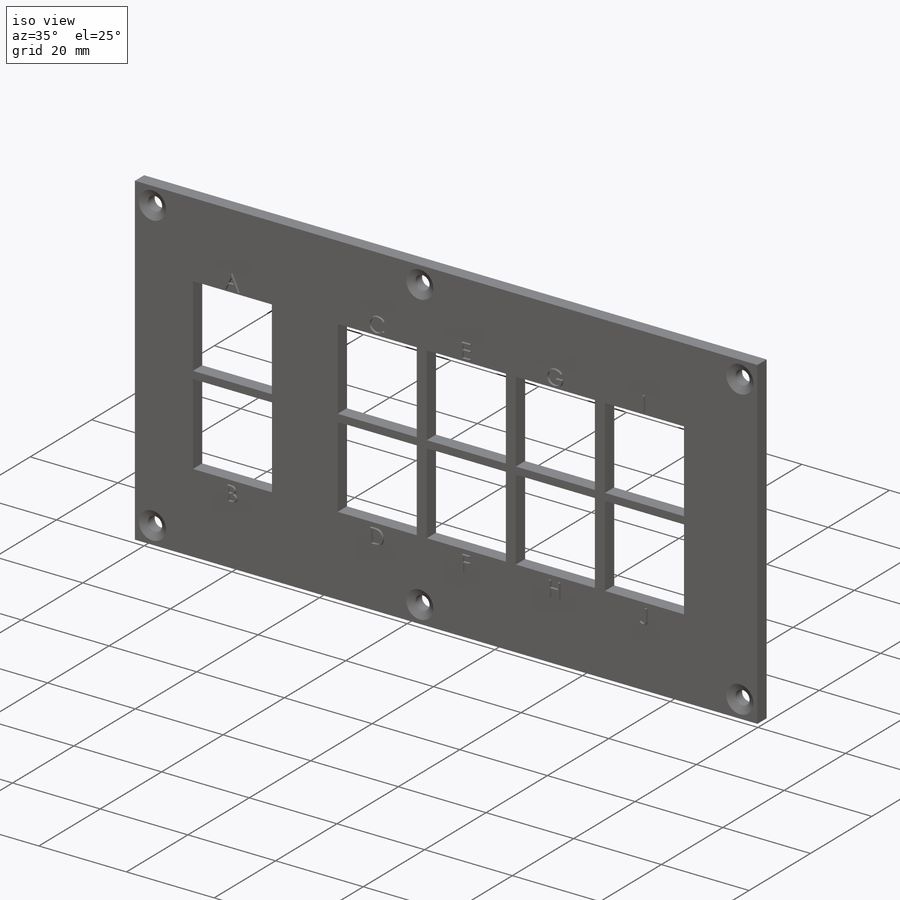
[diagram: iso view]
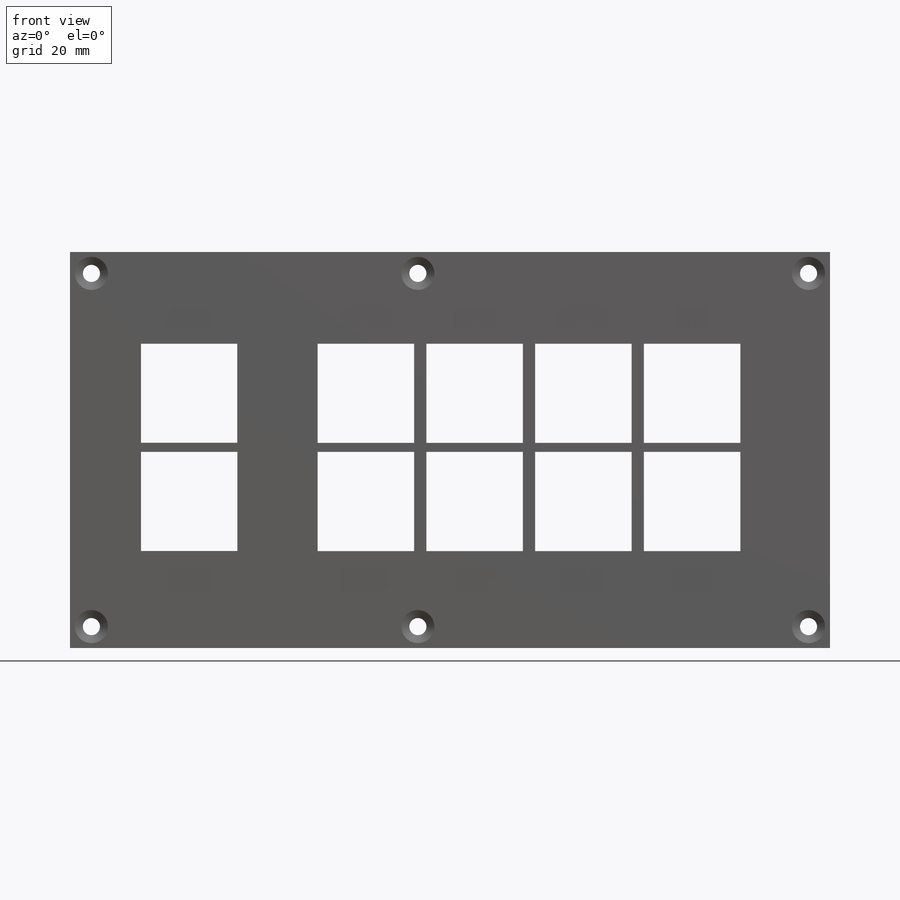
[diagram: front view]
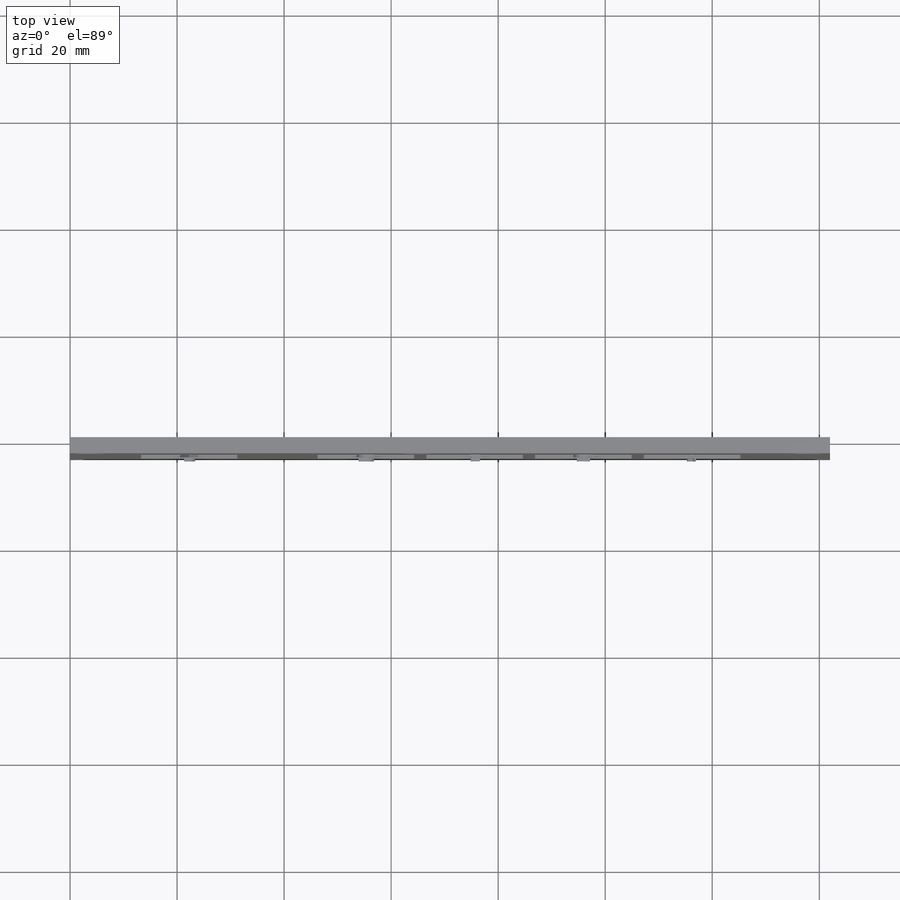
[diagram: top view]
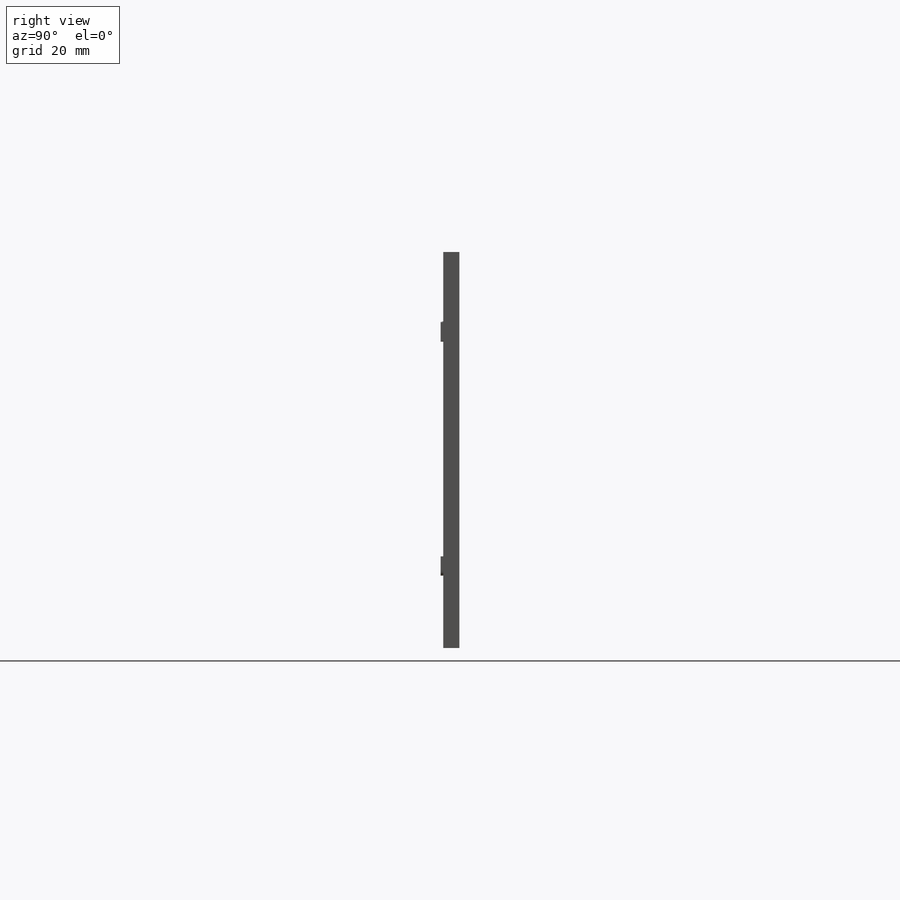
[diagram: right view]
SOLIDWORKS PART (.sldprt)
format: sldprt  version: not decoded by parser v0  size: 531,456 bytes
history: native  units: mm
features: sketch x4, plane x3, extrude x2, cut_extrude x2, material x1, chamfer x1 (+10 scaffold rows collapsed)
feature tree (23):
  scaffold x10  (default folders/planes/origin — collapsed)
  material  "Matériau <non spécifié>"
  plane  "Plan de face"
  plane  "Plan de dessus"
  plane  "Plan de droite"
  sketch  "Esquisse1"  dims[D1=142.0mm D2=74.0mm]
  extrude  "Boss.-Extru.1"  Depth=3mm
  sketch  "Esquisse2"  dims[c1.D1=3.2mm c1.D4=3.2mm c1.D13=3.2mm c1.D14=3.2mm c1.D15=3.2mm c1.D18=3.2mm c1.D2=4.0mm c1.D3=4.0mm c1.D5=4.0mm c1.D6=65.0mm c1.D7=4.0mm c1.D8=4.0mm c1.D9=16.0mm c1.D10=4.0mm c1.D11=4.0mm c1.D12=65.0mm c1.D16=4.0mm c1.D17=4.0mm c2.D9=4.0mm]
  cut_extrude  "Enlèv. mat.-Extru.1"  Depth=3mm
  chamfer  "Chanfrein1"  Distance=1.5mm Angle=30deg
  sketch  "Esquisse3"  dims[c1.D1=0.5mm c1.D2=0.5mm c1.D3=0.5mm c1.D4=0.5mm c2.D1=18.0mm c2.D2=18.5mm c2.D3=13.25mm c2.D4=17.15mm c2.D5=0.5mm c2.D6=0.5mm c2.D7=0.5mm c2.D8=0.5mm c3.D5=1.693mm c3.D6=18.53mm c3.D7=18.018mm c3.D8=13.25mm c3.D9=0.5mm c3.D10=0.5mm c3.D11=0.5mm c3.D12=0.5mm c4.D9=18.02mm c4.D10=18.526mm c4.D11=15.018mm c4.D12=17.15mm c4.D13=4.0 c4.D14=2.0]
  cut_extrude  "Enlèv. mat.-Extru.2"  Depth=3mm
  sketch  "Esquisse4"  dims[D1=0.5mm D2=0.5mm D3=0.5mm D4=4.5mm D5=0.0mm D6=0.0mm D7=0.0mm D8=0.0mm D9=0.0mm D10=0.0mm D11=0.0mm D12=0.0mm D13=0.0mm D14=0.0mm D15=0.0mm D16=0.0mm D17=0.0mm D18=0.0mm D19=0.0mm D20=0.0mm D21=0.0mm D22=0.0mm D23=0.0mm D24=0.0mm]
  extrude  "Boss.-Extru.2"  Depth=0.5mm
decode coverage: 9 of 9 modeling features carry decoded parameters
note: suppression state not decoded; provenance and decode notes live in map.json
